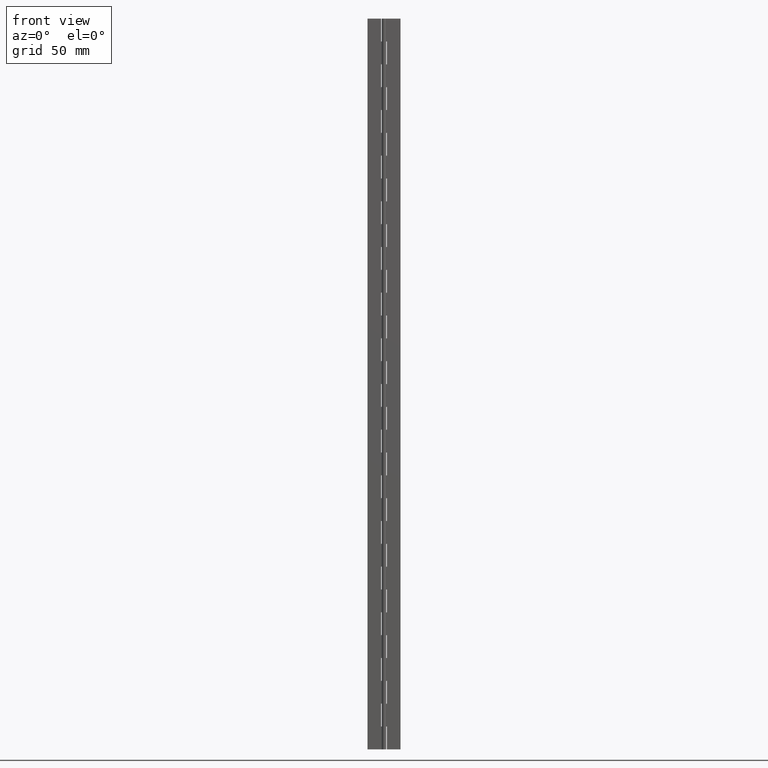
[diagram: clean part render]
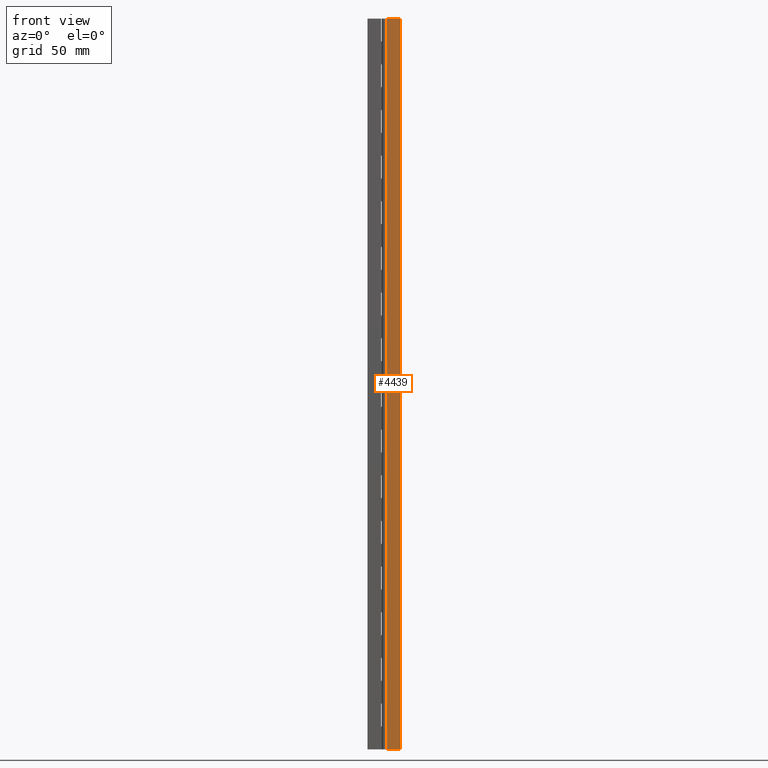
[diagram: same view with one face highlighted and labeled with its STEP entity id]
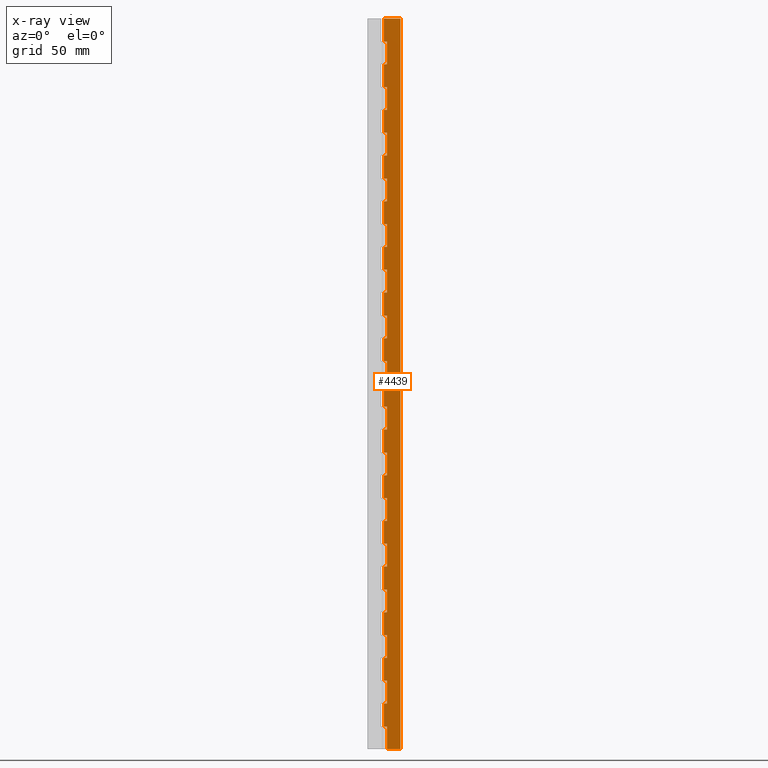
[diagram: x-ray of the same camera — body ghosted, the highlighted face saturated]
A machine part, front view. The second image highlights one B-rep face of the part: STEP entity #4439.
The next image is the same camera in x-ray: the body ghosted, the highlighted face saturated — about 0% of this face is hidden behind the body in this view.
In plain terms, the highlighted face is a freeform B-spline surface patch.
Its self-contained STEP definition (entity closure, byte-faithful):
#79=CARTESIAN_POINT('',(1.599998000000000,0.750000000000028,387.500000000000000));
#80=VERTEX_POINT('',#79);
#86=CARTESIAN_POINT('',(-1.377682E-016,0.750000000000000,387.500000000000000));
#87=VERTEX_POINT('',#86);
#88=CARTESIAN_POINT('',(1.599998000000000,0.750000000000028,387.500000000000000));
#89=CARTESIAN_POINT('',(-1.377682E-016,0.750000000000000,387.500000000000000));
#90=QUASI_UNIFORM_CURVE('',1,(#88,#89),.UNSPECIFIED.,.F.,.U.);
#91=EDGE_CURVE('',#80,#87,#90,.T.);
#127=CARTESIAN_POINT('',(-1.377682E-016,0.750000000000000,375.0));
#128=VERTEX_POINT('',#127);
#129=CARTESIAN_POINT('',(1.599998000000000,0.750000000000028,375.0));
#130=VERTEX_POINT('',#129);
#131=CARTESIAN_POINT('',(-1.377682E-016,0.750000000000000,375.0));
#132=CARTESIAN_POINT('',(1.599998000000000,0.750000000000028,375.0));
#133=QUASI_UNIFORM_CURVE('',1,(#131,#132),.UNSPECIFIED.,.F.,.U.);
#134=EDGE_CURVE('',#128,#130,#133,.T.);
#205=CARTESIAN_POINT('',(1.599998000000000,0.750000000000028,375.0));
#206=CARTESIAN_POINT('',(1.599998000000000,0.750000000000028,387.500000000000000));
#207=QUASI_UNIFORM_CURVE('',1,(#205,#206),.UNSPECIFIED.,.F.,.U.);
#208=EDGE_CURVE('',#130,#80,#207,.T.);
#255=CARTESIAN_POINT('',(1.599998000000000,0.750000000000028,362.500000000000000));
#256=VERTEX_POINT('',#255);
#262=CARTESIAN_POINT('',(-1.377682E-016,0.750000000000000,362.500000000000000));
#263=VERTEX_POINT('',#262);
#264=CARTESIAN_POINT('',(1.599998000000000,0.750000000000028,362.500000000000000));
#265=CARTESIAN_POINT('',(-1.377682E-016,0.750000000000000,362.500000000000000));
#266=QUASI_UNIFORM_CURVE('',1,(#264,#265),.UNSPECIFIED.,.F.,.U.);
#267=EDGE_CURVE('',#256,#263,#266,.T.);
#303=CARTESIAN_POINT('',(-1.377682E-016,0.750000000000000,350.0));
#304=VERTEX_POINT('',#303);
#305=CARTESIAN_POINT('',(1.599998000000000,0.750000000000028,350.0));
#306=VERTEX_POINT('',#305);
#307=CARTESIAN_POINT('',(-1.377682E-016,0.750000000000000,350.0));
#308=CARTESIAN_POINT('',(1.599998000000000,0.750000000000028,350.0));
#309=QUASI_UNIFORM_CURVE('',1,(#307,#308),.UNSPECIFIED.,.F.,.U.);
#310=EDGE_CURVE('',#304,#306,#309,.T.);
#381=CARTESIAN_POINT('',(1.599998000000000,0.750000000000028,350.0));
#382=CARTESIAN_POINT('',(1.599998000000000,0.750000000000028,362.500000000000000));
#383=QUASI_UNIFORM_CURVE('',1,(#381,#382),.UNSPECIFIED.,.F.,.U.);
#384=EDGE_CURVE('',#306,#256,#383,.T.);
#431=CARTESIAN_POINT('',(1.599998000000000,0.750000000000028,337.500000000000000));
#432=VERTEX_POINT('',#431);
#438=CARTESIAN_POINT('',(-1.377682E-016,0.750000000000000,337.500000000000000));
#439=VERTEX_POINT('',#438);
#440=CARTESIAN_POINT('',(1.599998000000000,0.750000000000028,337.500000000000000));
#441=CARTESIAN_POINT('',(-1.377682E-016,0.750000000000000,337.500000000000000));
#442=QUASI_UNIFORM_CURVE('',1,(#440,#441),.UNSPECIFIED.,.F.,.U.);
#443=EDGE_CURVE('',#432,#439,#442,.T.);
#479=CARTESIAN_POINT('',(-1.377682E-016,0.750000000000000,325.0));
#480=VERTEX_POINT('',#479);
#481=CARTESIAN_POINT('',(1.599998000000000,0.750000000000028,325.0));
#482=VERTEX_POINT('',#481);
#483=CARTESIAN_POINT('',(-1.377682E-016,0.750000000000000,325.0));
#484=CARTESIAN_POINT('',(1.599998000000000,0.750000000000028,325.0));
#485=QUASI_UNIFORM_CURVE('',1,(#483,#484),.UNSPECIFIED.,.F.,.U.);
#486=EDGE_CURVE('',#480,#482,#485,.T.);
#557=CARTESIAN_POINT('',(1.599998000000000,0.750000000000028,325.0));
#558=CARTESIAN_POINT('',(1.599998000000000,0.750000000000028,337.500000000000000));
#559=QUASI_UNIFORM_CURVE('',1,(#557,#558),.UNSPECIFIED.,.F.,.U.);
#560=EDGE_CURVE('',#482,#432,#559,.T.);
#607=CARTESIAN_POINT('',(1.599998000000000,0.750000000000028,312.500000000000000));
#608=VERTEX_POINT('',#607);
#614=CARTESIAN_POINT('',(-1.377682E-016,0.750000000000000,312.500000000000000));
#615=VERTEX_POINT('',#614);
#616=CARTESIAN_POINT('',(1.599998000000000,0.750000000000028,312.500000000000000));
#617=CARTESIAN_POINT('',(-1.377682E-016,0.750000000000000,312.500000000000000));
#618=QUASI_UNIFORM_CURVE('',1,(#616,#617),.UNSPECIFIED.,.F.,.U.);
#619=EDGE_CURVE('',#608,#615,#618,.T.);
#655=CARTESIAN_POINT('',(-1.377682E-016,0.750000000000000,300.0));
#656=VERTEX_POINT('',#655);
#657=CARTESIAN_POINT('',(1.599998000000000,0.750000000000028,300.0));
#658=VERTEX_POINT('',#657);
#659=CARTESIAN_POINT('',(-1.377682E-016,0.750000000000000,300.0));
#660=CARTESIAN_POINT('',(1.599998000000000,0.750000000000028,300.0));
#661=QUASI_UNIFORM_CURVE('',1,(#659,#660),.UNSPECIFIED.,.F.,.U.);
#662=EDGE_CURVE('',#656,#658,#661,.T.);
#733=CARTESIAN_POINT('',(1.599998000000000,0.750000000000028,300.0));
#734=CARTESIAN_POINT('',(1.599998000000000,0.750000000000028,312.500000000000000));
#735=QUASI_UNIFORM_CURVE('',1,(#733,#734),.UNSPECIFIED.,.F.,.U.);
#736=EDGE_CURVE('',#658,#608,#735,.T.);
#783=CARTESIAN_POINT('',(1.599998000000000,0.750000000000028,287.500000000000000));
#784=VERTEX_POINT('',#783);
#790=CARTESIAN_POINT('',(-1.377682E-016,0.750000000000000,287.500000000000000));
#791=VERTEX_POINT('',#790);
#792=CARTESIAN_POINT('',(1.599998000000000,0.750000000000028,287.500000000000000));
#793=CARTESIAN_POINT('',(-1.377682E-016,0.750000000000000,287.500000000000000));
#794=QUASI_UNIFORM_CURVE('',1,(#792,#793),.UNSPECIFIED.,.F.,.U.);
#795=EDGE_CURVE('',#784,#791,#794,.T.);
#831=CARTESIAN_POINT('',(-1.377682E-016,0.750000000000000,275.0));
#832=VERTEX_POINT('',#831);
#833=CARTESIAN_POINT('',(1.599998000000000,0.750000000000028,275.0));
#834=VERTEX_POINT('',#833);
#835=CARTESIAN_POINT('',(-1.377682E-016,0.750000000000000,275.0));
#836=CARTESIAN_POINT('',(1.599998000000000,0.750000000000028,275.0));
#837=QUASI_UNIFORM_CURVE('',1,(#835,#836),.UNSPECIFIED.,.F.,.U.);
#838=EDGE_CURVE('',#832,#834,#837,.T.);
#909=CARTESIAN_POINT('',(1.599998000000000,0.750000000000028,275.0));
#910=CARTESIAN_POINT('',(1.599998000000000,0.750000000000028,287.500000000000000));
#911=QUASI_UNIFORM_CURVE('',1,(#909,#910),.UNSPECIFIED.,.F.,.U.);
#912=EDGE_CURVE('',#834,#784,#911,.T.);
#959=CARTESIAN_POINT('',(1.599998000000000,0.750000000000028,262.500000000000000));
#960=VERTEX_POINT('',#959);
#966=CARTESIAN_POINT('',(-1.377682E-016,0.750000000000000,262.500000000000000));
#967=VERTEX_POINT('',#966);
#968=CARTESIAN_POINT('',(1.599998000000000,0.750000000000028,262.500000000000000));
#969=CARTESIAN_POINT('',(-1.377682E-016,0.750000000000000,262.500000000000000));
#970=QUASI_UNIFORM_CURVE('',1,(#968,#969),.UNSPECIFIED.,.F.,.U.);
#971=EDGE_CURVE('',#960,#967,#970,.T.);
#1007=CARTESIAN_POINT('',(-1.377682E-016,0.750000000000000,250.0));
#1008=VERTEX_POINT('',#1007);
#1009=CARTESIAN_POINT('',(1.599998000000000,0.750000000000028,250.0));
#1010=VERTEX_POINT('',#1009);
#1011=CARTESIAN_POINT('',(-1.377682E-016,0.750000000000000,250.0));
#1012=CARTESIAN_POINT('',(1.599998000000000,0.750000000000028,250.0));
#1013=QUASI_UNIFORM_CURVE('',1,(#1011,#1012),.UNSPECIFIED.,.F.,.U.);
#1014=EDGE_CURVE('',#1008,#1010,#1013,.T.);
#1085=CARTESIAN_POINT('',(1.599998000000000,0.750000000000028,250.0));
#1086=CARTESIAN_POINT('',(1.599998000000000,0.750000000000028,262.500000000000000));
#1087=QUASI_UNIFORM_CURVE('',1,(#1085,#1086),.UNSPECIFIED.,.F.,.U.);
#1088=EDGE_CURVE('',#1010,#960,#1087,.T.);
#1135=CARTESIAN_POINT('',(1.599998000000000,0.750000000000028,237.500000000000000));
#1136=VERTEX_POINT('',#1135);
#1142=CARTESIAN_POINT('',(-1.377682E-016,0.750000000000000,237.500000000000000));
#1143=VERTEX_POINT('',#1142);
#1144=CARTESIAN_POINT('',(1.599998000000000,0.750000000000028,237.500000000000000));
#1145=CARTESIAN_POINT('',(-1.377682E-016,0.750000000000000,237.500000000000000));
#1146=QUASI_UNIFORM_CURVE('',1,(#1144,#1145),.UNSPECIFIED.,.F.,.U.);
#1147=EDGE_CURVE('',#1136,#1143,#1146,.T.);
#1183=CARTESIAN_POINT('',(-1.377682E-016,0.750000000000000,225.0));
#1184=VERTEX_POINT('',#1183);
#1185=CARTESIAN_POINT('',(1.599998000000000,0.750000000000028,225.0));
#1186=VERTEX_POINT('',#1185);
#1187=CARTESIAN_POINT('',(-1.377682E-016,0.750000000000000,225.0));
#1188=CARTESIAN_POINT('',(1.599998000000000,0.750000000000028,225.0));
#1189=QUASI_UNIFORM_CURVE('',1,(#1187,#1188),.UNSPECIFIED.,.F.,.U.);
#1190=EDGE_CURVE('',#1184,#1186,#1189,.T.);
#1261=CARTESIAN_POINT('',(1.599998000000000,0.750000000000028,225.0));
#1262=CARTESIAN_POINT('',(1.599998000000000,0.750000000000028,237.500000000000000));
#1263=QUASI_UNIFORM_CURVE('',1,(#1261,#1262),.UNSPECIFIED.,.F.,.U.);
#1264=EDGE_CURVE('',#1186,#1136,#1263,.T.);
#1311=CARTESIAN_POINT('',(1.599998000000000,0.750000000000028,212.500000000000000));
#1312=VERTEX_POINT('',#1311);
#1318=CARTESIAN_POINT('',(-1.377682E-016,0.750000000000000,212.500000000000000));
#1319=VERTEX_POINT('',#1318);
#1320=CARTESIAN_POINT('',(1.599998000000000,0.750000000000028,212.500000000000000));
#1321=CARTESIAN_POINT('',(-1.377682E-016,0.750000000000000,212.500000000000000));
#1322=QUASI_UNIFORM_CURVE('',1,(#1320,#1321),.UNSPECIFIED.,.F.,.U.);
#1323=EDGE_CURVE('',#1312,#1319,#1322,.T.);
#1359=CARTESIAN_POINT('',(-1.377682E-016,0.750000000000000,200.0));
#1360=VERTEX_POINT('',#1359);
#1361=CARTESIAN_POINT('',(1.599998000000000,0.750000000000028,200.0));
#1362=VERTEX_POINT('',#1361);
#1363=CARTESIAN_POINT('',(-1.377682E-016,0.750000000000000,200.0));
#1364=CARTESIAN_POINT('',(1.599998000000000,0.750000000000028,200.0));
#1365=QUASI_UNIFORM_CURVE('',1,(#1363,#1364),.UNSPECIFIED.,.F.,.U.);
#1366=EDGE_CURVE('',#1360,#1362,#1365,.T.);
#1437=CARTESIAN_POINT('',(1.599998000000000,0.750000000000028,200.0));
#1438=CARTESIAN_POINT('',(1.599998000000000,0.750000000000028,212.500000000000000));
#1439=QUASI_UNIFORM_CURVE('',1,(#1437,#1438),.UNSPECIFIED.,.F.,.U.);
#1440=EDGE_CURVE('',#1362,#1312,#1439,.T.);
#1487=CARTESIAN_POINT('',(1.599998000000000,0.750000000000028,187.500000000000000));
#1488=VERTEX_POINT('',#1487);
#1494=CARTESIAN_POINT('',(-1.377682E-016,0.750000000000000,187.500000000000000));
#1495=VERTEX_POINT('',#1494);
#1496=CARTESIAN_POINT('',(1.599998000000000,0.750000000000028,187.500000000000000));
#1497=CARTESIAN_POINT('',(-1.377682E-016,0.750000000000000,187.500000000000000));
#1498=QUASI_UNIFORM_CURVE('',1,(#1496,#1497),.UNSPECIFIED.,.F.,.U.);
#1499=EDGE_CURVE('',#1488,#1495,#1498,.T.);
#1535=CARTESIAN_POINT('',(-1.377682E-016,0.750000000000000,175.0));
#1536=VERTEX_POINT('',#1535);
#1537=CARTESIAN_POINT('',(1.599998000000000,0.750000000000028,175.0));
#1538=VERTEX_POINT('',#1537);
#1539=CARTESIAN_POINT('',(-1.377682E-016,0.750000000000000,175.0));
#1540=CARTESIAN_POINT('',(1.599998000000000,0.750000000000028,175.0));
#1541=QUASI_UNIFORM_CURVE('',1,(#1539,#1540),.UNSPECIFIED.,.F.,.U.);
#1542=EDGE_CURVE('',#1536,#1538,#1541,.T.);
#1613=CARTESIAN_POINT('',(1.599998000000000,0.750000000000028,175.0));
#1614=CARTESIAN_POINT('',(1.599998000000000,0.750000000000028,187.500000000000000));
#1615=QUASI_UNIFORM_CURVE('',1,(#1613,#1614),.UNSPECIFIED.,.F.,.U.);
#1616=EDGE_CURVE('',#1538,#1488,#1615,.T.);
#1663=CARTESIAN_POINT('',(1.599998000000000,0.750000000000028,162.500000000000000));
#1664=VERTEX_POINT('',#1663);
#1670=CARTESIAN_POINT('',(-1.377682E-016,0.750000000000000,162.500000000000000));
#1671=VERTEX_POINT('',#1670);
#1672=CARTESIAN_POINT('',(1.599998000000000,0.750000000000028,162.500000000000000));
#1673=CARTESIAN_POINT('',(-1.377682E-016,0.750000000000000,162.500000000000000));
#1674=QUASI_UNIFORM_CURVE('',1,(#1672,#1673),.UNSPECIFIED.,.F.,.U.);
#1675=EDGE_CURVE('',#1664,#1671,#1674,.T.);
#1711=CARTESIAN_POINT('',(-1.377682E-016,0.750000000000000,150.0));
#1712=VERTEX_POINT('',#1711);
#1713=CARTESIAN_POINT('',(1.599998000000000,0.750000000000028,150.0));
#1714=VERTEX_POINT('',#1713);
#1715=CARTESIAN_POINT('',(-1.377682E-016,0.750000000000000,150.0));
#1716=CARTESIAN_POINT('',(1.599998000000000,0.750000000000028,150.0));
#1717=QUASI_UNIFORM_CURVE('',1,(#1715,#1716),.UNSPECIFIED.,.F.,.U.);
#1718=EDGE_CURVE('',#1712,#1714,#1717,.T.);
#1789=CARTESIAN_POINT('',(1.599998000000000,0.750000000000028,150.0));
#1790=CARTESIAN_POINT('',(1.599998000000000,0.750000000000028,162.500000000000000));
#1791=QUASI_UNIFORM_CURVE('',1,(#1789,#1790),.UNSPECIFIED.,.F.,.U.);
#1792=EDGE_CURVE('',#1714,#1664,#1791,.T.);
#1839=CARTESIAN_POINT('',(1.599998000000000,0.750000000000028,137.500000000000000));
#1840=VERTEX_POINT('',#1839);
#1846=CARTESIAN_POINT('',(-1.377682E-016,0.750000000000000,137.500000000000000));
#1847=VERTEX_POINT('',#1846);
#1848=CARTESIAN_POINT('',(1.599998000000000,0.750000000000028,137.500000000000000));
#1849=CARTESIAN_POINT('',(-1.377682E-016,0.750000000000000,137.500000000000000));
#1850=QUASI_UNIFORM_CURVE('',1,(#1848,#1849),.UNSPECIFIED.,.F.,.U.);
#1851=EDGE_CURVE('',#1840,#1847,#1850,.T.);
#1887=CARTESIAN_POINT('',(-1.377682E-016,0.750000000000000,125.0));
#1888=VERTEX_POINT('',#1887);
#1889=CARTESIAN_POINT('',(1.599998000000000,0.750000000000028,125.0));
#1890=VERTEX_POINT('',#1889);
#1891=CARTESIAN_POINT('',(-1.377682E-016,0.750000000000000,125.0));
#1892=CARTESIAN_POINT('',(1.599998000000000,0.750000000000028,125.0));
#1893=QUASI_UNIFORM_CURVE('',1,(#1891,#1892),.UNSPECIFIED.,.F.,.U.);
#1894=EDGE_CURVE('',#1888,#1890,#1893,.T.);
#1965=CARTESIAN_POINT('',(1.599998000000000,0.750000000000028,125.0));
#1966=CARTESIAN_POINT('',(1.599998000000000,0.750000000000028,137.500000000000000));
#1967=QUASI_UNIFORM_CURVE('',1,(#1965,#1966),.UNSPECIFIED.,.F.,.U.);
#1968=EDGE_CURVE('',#1890,#1840,#1967,.T.);
#2015=CARTESIAN_POINT('',(1.599998000000000,0.750000000000028,112.500000000000000));
#2016=VERTEX_POINT('',#2015);
#2022=CARTESIAN_POINT('',(-1.377682E-016,0.750000000000000,112.500000000000000));
#2023=VERTEX_POINT('',#2022);
#2024=CARTESIAN_POINT('',(1.599998000000000,0.750000000000028,112.500000000000000));
#2025=CARTESIAN_POINT('',(-1.377682E-016,0.750000000000000,112.500000000000000));
#2026=QUASI_UNIFORM_CURVE('',1,(#2024,#2025),.UNSPECIFIED.,.F.,.U.);
#2027=EDGE_CURVE('',#2016,#2023,#2026,.T.);
#2063=CARTESIAN_POINT('',(-1.377682E-016,0.750000000000000,100.0));
#2064=VERTEX_POINT('',#2063);
#2065=CARTESIAN_POINT('',(1.599998000000000,0.750000000000028,100.0));
#2066=VERTEX_POINT('',#2065);
#2067=CARTESIAN_POINT('',(-1.377682E-016,0.750000000000000,100.0));
#2068=CARTESIAN_POINT('',(1.599998000000000,0.750000000000028,100.0));
#2069=QUASI_UNIFORM_CURVE('',1,(#2067,#2068),.UNSPECIFIED.,.F.,.U.);
#2070=EDGE_CURVE('',#2064,#2066,#2069,.T.);
#2141=CARTESIAN_POINT('',(1.599998000000000,0.750000000000028,100.0));
#2142=CARTESIAN_POINT('',(1.599998000000000,0.750000000000028,112.500000000000000));
#2143=QUASI_UNIFORM_CURVE('',1,(#2141,#2142),.UNSPECIFIED.,.F.,.U.);
#2144=EDGE_CURVE('',#2066,#2016,#2143,.T.);
#2191=CARTESIAN_POINT('',(1.599998000000000,0.750000000000028,87.500000000000000));
#2192=VERTEX_POINT('',#2191);
#2198=CARTESIAN_POINT('',(-1.377682E-016,0.750000000000000,87.500000000000000));
#2199=VERTEX_POINT('',#2198);
#2200=CARTESIAN_POINT('',(1.599998000000000,0.750000000000028,87.500000000000000));
#2201=CARTESIAN_POINT('',(-1.377682E-016,0.750000000000000,87.500000000000000));
#2202=QUASI_UNIFORM_CURVE('',1,(#2200,#2201),.UNSPECIFIED.,.F.,.U.);
#2203=EDGE_CURVE('',#2192,#2199,#2202,.T.);
#2239=CARTESIAN_POINT('',(-1.377682E-016,0.750000000000000,75.0));
#2240=VERTEX_POINT('',#2239);
#2241=CARTESIAN_POINT('',(1.599998000000000,0.750000000000028,75.0));
#2242=VERTEX_POINT('',#2241);
#2243=CARTESIAN_POINT('',(-1.377682E-016,0.750000000000000,75.0));
#2244=CARTESIAN_POINT('',(1.599998000000000,0.750000000000028,75.0));
#2245=QUASI_UNIFORM_CURVE('',1,(#2243,#2244),.UNSPECIFIED.,.F.,.U.);
#2246=EDGE_CURVE('',#2240,#2242,#2245,.T.);
#2317=CARTESIAN_POINT('',(1.599998000000000,0.750000000000028,75.0));
#2318=CARTESIAN_POINT('',(1.599998000000000,0.750000000000028,87.500000000000000));
#2319=QUASI_UNIFORM_CURVE('',1,(#2317,#2318),.UNSPECIFIED.,.F.,.U.);
#2320=EDGE_CURVE('',#2242,#2192,#2319,.T.);
#2367=CARTESIAN_POINT('',(1.599998000000000,0.750000000000028,62.500000000000000));
#2368=VERTEX_POINT('',#2367);
#2374=CARTESIAN_POINT('',(-1.377682E-016,0.750000000000000,62.500000000000000));
#2375=VERTEX_POINT('',#2374);
#2376=CARTESIAN_POINT('',(1.599998000000000,0.750000000000028,62.500000000000000));
#2377=CARTESIAN_POINT('',(-1.377682E-016,0.750000000000000,62.500000000000000));
#2378=QUASI_UNIFORM_CURVE('',1,(#2376,#2377),.UNSPECIFIED.,.F.,.U.);
#2379=EDGE_CURVE('',#2368,#2375,#2378,.T.);
#2415=CARTESIAN_POINT('',(-1.377682E-016,0.750000000000000,50.0));
#2416=VERTEX_POINT('',#2415);
#2417=CARTESIAN_POINT('',(1.599998000000000,0.750000000000028,50.0));
#2418=VERTEX_POINT('',#2417);
#2419=CARTESIAN_POINT('',(-1.377682E-016,0.750000000000000,50.0));
#2420=CARTESIAN_POINT('',(1.599998000000000,0.750000000000028,50.0));
#2421=QUASI_UNIFORM_CURVE('',1,(#2419,#2420),.UNSPECIFIED.,.F.,.U.);
#2422=EDGE_CURVE('',#2416,#2418,#2421,.T.);
#2493=CARTESIAN_POINT('',(1.599998000000000,0.750000000000028,50.0));
#2494=CARTESIAN_POINT('',(1.599998000000000,0.750000000000028,62.500000000000000));
#2495=QUASI_UNIFORM_CURVE('',1,(#2493,#2494),.UNSPECIFIED.,.F.,.U.);
#2496=EDGE_CURVE('',#2418,#2368,#2495,.T.);
#2543=CARTESIAN_POINT('',(1.599998000000000,0.750000000000028,37.500000000000000));
#2544=VERTEX_POINT('',#2543);
#2550=CARTESIAN_POINT('',(-1.377682E-016,0.750000000000000,37.500000000000000));
#2551=VERTEX_POINT('',#2550);
#2552=CARTESIAN_POINT('',(1.599998000000000,0.750000000000028,37.500000000000000));
#2553=CARTESIAN_POINT('',(-1.377682E-016,0.750000000000000,37.500000000000000));
#2554=QUASI_UNIFORM_CURVE('',1,(#2552,#2553),.UNSPECIFIED.,.F.,.U.);
#2555=EDGE_CURVE('',#2544,#2551,#2554,.T.);
#2591=CARTESIAN_POINT('',(-1.377682E-016,0.750000000000000,25.0));
#2592=VERTEX_POINT('',#2591);
#2593=CARTESIAN_POINT('',(1.599998000000000,0.750000000000028,25.0));
#2594=VERTEX_POINT('',#2593);
#2595=CARTESIAN_POINT('',(-1.377682E-016,0.750000000000000,25.0));
#2596=CARTESIAN_POINT('',(1.599998000000000,0.750000000000028,25.0));
#2597=QUASI_UNIFORM_CURVE('',1,(#2595,#2596),.UNSPECIFIED.,.F.,.U.);
#2598=EDGE_CURVE('',#2592,#2594,#2597,.T.);
#2669=CARTESIAN_POINT('',(1.599998000000000,0.750000000000028,25.0));
#2670=CARTESIAN_POINT('',(1.599998000000000,0.750000000000028,37.500000000000000));
#2671=QUASI_UNIFORM_CURVE('',1,(#2669,#2670),.UNSPECIFIED.,.F.,.U.);
#2672=EDGE_CURVE('',#2594,#2544,#2671,.T.);
#2689=CARTESIAN_POINT('',(1.599998000000000,0.750000000000028,0.0));
#2690=VERTEX_POINT('',#2689);
#2691=CARTESIAN_POINT('',(1.599998000000000,0.750000000000028,12.500000000000000));
#2692=VERTEX_POINT('',#2691);
#2693=CARTESIAN_POINT('',(1.599998000000000,0.750000000000028,0.0));
#2694=CARTESIAN_POINT('',(1.599998000000000,0.750000000000028,12.500000000000000));
#2695=QUASI_UNIFORM_CURVE('',1,(#2693,#2694),.UNSPECIFIED.,.F.,.U.);
#2696=EDGE_CURVE('',#2690,#2692,#2695,.T.);
#2754=CARTESIAN_POINT('',(-1.377682E-016,0.750000000000000,12.500000000000000));
#2755=VERTEX_POINT('',#2754);
#2756=CARTESIAN_POINT('',(1.599998000000000,0.750000000000028,12.500000000000000));
#2757=CARTESIAN_POINT('',(-1.377682E-016,0.750000000000000,12.500000000000000));
#2758=QUASI_UNIFORM_CURVE('',1,(#2756,#2757),.UNSPECIFIED.,.F.,.U.);
#2759=EDGE_CURVE('',#2692,#2755,#2758,.T.);
#2795=CARTESIAN_POINT('',(-1.377682E-016,0.750000000000000,400.0));
#2796=VERTEX_POINT('',#2795);
#2797=CARTESIAN_POINT('',(9.0,0.750000000000000,400.0));
#2798=VERTEX_POINT('',#2797);
#2799=CARTESIAN_POINT('',(-1.377682E-016,0.750000000000000,400.0));
#2800=CARTESIAN_POINT('',(9.0,0.750000000000000,400.0));
#2801=QUASI_UNIFORM_CURVE('',1,(#2799,#2800),.UNSPECIFIED.,.F.,.U.);
#2802=EDGE_CURVE('',#2796,#2798,#2801,.T.);
#2873=CARTESIAN_POINT('',(9.0,0.750000000000000,0.0));
#2874=VERTEX_POINT('',#2873);
#2888=CARTESIAN_POINT('',(9.0,0.750000000000000,400.0));
#2889=CARTESIAN_POINT('',(9.0,0.750000000000000,0.0));
#2890=QUASI_UNIFORM_CURVE('',1,(#2888,#2889),.UNSPECIFIED.,.F.,.U.);
#2891=EDGE_CURVE('',#2798,#2874,#2890,.T.);
#2908=CARTESIAN_POINT('',(1.599998000000000,0.750000000000028,0.0));
#2909=CARTESIAN_POINT('',(9.0,0.750000000000000,0.0));
#2910=QUASI_UNIFORM_CURVE('',1,(#2908,#2909),.UNSPECIFIED.,.F.,.U.);
#2911=EDGE_CURVE('',#2690,#2874,#2910,.T.);
#2938=CARTESIAN_POINT('',(-1.377682E-016,0.750000000000000,25.0));
#2939=CARTESIAN_POINT('',(-1.377682E-016,0.750000000000000,12.500000000000000));
#2940=QUASI_UNIFORM_CURVE('',1,(#2938,#2939),.UNSPECIFIED.,.F.,.U.);
#2941=EDGE_CURVE('',#2592,#2755,#2940,.T.);
#3024=CARTESIAN_POINT('',(-1.377682E-016,0.750000000000000,50.0));
#3025=CARTESIAN_POINT('',(-1.377682E-016,0.750000000000000,37.500000000000000));
#3026=QUASI_UNIFORM_CURVE('',1,(#3024,#3025),.UNSPECIFIED.,.F.,.U.);
#3027=EDGE_CURVE('',#2416,#2551,#3026,.T.);
#3110=CARTESIAN_POINT('',(-1.377682E-016,0.750000000000000,75.0));
#3111=CARTESIAN_POINT('',(-1.377682E-016,0.750000000000000,62.500000000000000));
#3112=QUASI_UNIFORM_CURVE('',1,(#3110,#3111),.UNSPECIFIED.,.F.,.U.);
#3113=EDGE_CURVE('',#2240,#2375,#3112,.T.);
#3196=CARTESIAN_POINT('',(-1.377682E-016,0.750000000000000,100.0));
#3197=CARTESIAN_POINT('',(-1.377682E-016,0.750000000000000,87.500000000000000));
#3198=QUASI_UNIFORM_CURVE('',1,(#3196,#3197),.UNSPECIFIED.,.F.,.U.);
#3199=EDGE_CURVE('',#2064,#2199,#3198,.T.);
#3282=CARTESIAN_POINT('',(-1.377682E-016,0.750000000000000,125.0));
#3283=CARTESIAN_POINT('',(-1.377682E-016,0.750000000000000,112.500000000000000));
#3284=QUASI_UNIFORM_CURVE('',1,(#3282,#3283),.UNSPECIFIED.,.F.,.U.);
#3285=EDGE_CURVE('',#1888,#2023,#3284,.T.);
#3368=CARTESIAN_POINT('',(-1.377682E-016,0.750000000000000,150.0));
#3369=CARTESIAN_POINT('',(-1.377682E-016,0.750000000000000,137.500000000000000));
#3370=QUASI_UNIFORM_CURVE('',1,(#3368,#3369),.UNSPECIFIED.,.F.,.U.);
#3371=EDGE_CURVE('',#1712,#1847,#3370,.T.);
#3454=CARTESIAN_POINT('',(-1.377682E-016,0.750000000000000,175.0));
#3455=CARTESIAN_POINT('',(-1.377682E-016,0.750000000000000,162.500000000000000));
#3456=QUASI_UNIFORM_CURVE('',1,(#3454,#3455),.UNSPECIFIED.,.F.,.U.);
#3457=EDGE_CURVE('',#1536,#1671,#3456,.T.);
#3540=CARTESIAN_POINT('',(-1.377682E-016,0.750000000000000,200.0));
#3541=CARTESIAN_POINT('',(-1.377682E-016,0.750000000000000,187.500000000000000));
#3542=QUASI_UNIFORM_CURVE('',1,(#3540,#3541),.UNSPECIFIED.,.F.,.U.);
#3543=EDGE_CURVE('',#1360,#1495,#3542,.T.);
#3626=CARTESIAN_POINT('',(-1.377682E-016,0.750000000000000,225.0));
#3627=CARTESIAN_POINT('',(-1.377682E-016,0.750000000000000,212.500000000000000));
#3628=QUASI_UNIFORM_CURVE('',1,(#3626,#3627),.UNSPECIFIED.,.F.,.U.);
#3629=EDGE_CURVE('',#1184,#1319,#3628,.T.);
#3712=CARTESIAN_POINT('',(-1.377682E-016,0.750000000000000,250.0));
#3713=CARTESIAN_POINT('',(-1.377682E-016,0.750000000000000,237.500000000000000));
#3714=QUASI_UNIFORM_CURVE('',1,(#3712,#3713),.UNSPECIFIED.,.F.,.U.);
#3715=EDGE_CURVE('',#1008,#1143,#3714,.T.);
#3798=CARTESIAN_POINT('',(-1.377682E-016,0.750000000000000,275.0));
#3799=CARTESIAN_POINT('',(-1.377682E-016,0.750000000000000,262.500000000000000));
#3800=QUASI_UNIFORM_CURVE('',1,(#3798,#3799),.UNSPECIFIED.,.F.,.U.);
#3801=EDGE_CURVE('',#832,#967,#3800,.T.);
#3884=CARTESIAN_POINT('',(-1.377682E-016,0.750000000000000,300.0));
#3885=CARTESIAN_POINT('',(-1.377682E-016,0.750000000000000,287.500000000000000));
#3886=QUASI_UNIFORM_CURVE('',1,(#3884,#3885),.UNSPECIFIED.,.F.,.U.);
#3887=EDGE_CURVE('',#656,#791,#3886,.T.);
#3970=CARTESIAN_POINT('',(-1.377682E-016,0.750000000000000,325.0));
#3971=CARTESIAN_POINT('',(-1.377682E-016,0.750000000000000,312.500000000000000));
#3972=QUASI_UNIFORM_CURVE('',1,(#3970,#3971),.UNSPECIFIED.,.F.,.U.);
#3973=EDGE_CURVE('',#480,#615,#3972,.T.);
#4056=CARTESIAN_POINT('',(-1.377682E-016,0.750000000000000,350.0));
#4057=CARTESIAN_POINT('',(-1.377682E-016,0.750000000000000,337.500000000000000));
#4058=QUASI_UNIFORM_CURVE('',1,(#4056,#4057),.UNSPECIFIED.,.F.,.U.);
#4059=EDGE_CURVE('',#304,#439,#4058,.T.);
#4148=CARTESIAN_POINT('',(-1.377682E-016,0.750000000000000,400.0));
#4149=CARTESIAN_POINT('',(-1.377682E-016,0.750000000000000,387.500000000000000));
#4150=QUASI_UNIFORM_CURVE('',1,(#4148,#4149),.UNSPECIFIED.,.F.,.U.);
#4151=EDGE_CURVE('',#2796,#87,#4150,.T.);
#4179=CARTESIAN_POINT('',(-1.377682E-016,0.750000000000000,375.0));
#4180=CARTESIAN_POINT('',(-1.377682E-016,0.750000000000000,362.500000000000000));
#4181=QUASI_UNIFORM_CURVE('',1,(#4179,#4180),.UNSPECIFIED.,.F.,.U.);
#4182=EDGE_CURVE('',#128,#263,#4181,.T.);
#4366=CARTESIAN_POINT('',(-0.449549982556253,0.750000000000000,-19.979999224722391));
#4367=CARTESIAN_POINT('',(-0.449549982556253,0.750000000000000,419.980009953558520));
#4368=CARTESIAN_POINT('',(9.449550223955063,0.750000000000000,-19.979999224722391));
#4369=CARTESIAN_POINT('',(9.449550223955063,0.750000000000000,419.980009953558520));
#4370=B_SPLINE_SURFACE_WITH_KNOTS('',1,1,((#4366,#4368),(#4367,#4369)),.UNSPECIFIED.,.F.,.F.,.U.,(2,2),(2,2),(0.0,439.960009178280930),(0.0,9.899100206511315),.UNSPECIFIED.);
#4371=ORIENTED_EDGE('',*,*,#134,.F.);
#4372=ORIENTED_EDGE('',*,*,#4182,.T.);
#4373=ORIENTED_EDGE('',*,*,#267,.F.);
#4374=ORIENTED_EDGE('',*,*,#384,.F.);
#4375=ORIENTED_EDGE('',*,*,#310,.F.);
#4376=ORIENTED_EDGE('',*,*,#4059,.T.);
#4377=ORIENTED_EDGE('',*,*,#443,.F.);
#4378=ORIENTED_EDGE('',*,*,#560,.F.);
#4379=ORIENTED_EDGE('',*,*,#486,.F.);
#4380=ORIENTED_EDGE('',*,*,#3973,.T.);
#4381=ORIENTED_EDGE('',*,*,#619,.F.);
#4382=ORIENTED_EDGE('',*,*,#736,.F.);
#4383=ORIENTED_EDGE('',*,*,#662,.F.);
#4384=ORIENTED_EDGE('',*,*,#3887,.T.);
#4385=ORIENTED_EDGE('',*,*,#795,.F.);
#4386=ORIENTED_EDGE('',*,*,#912,.F.);
#4387=ORIENTED_EDGE('',*,*,#838,.F.);
#4388=ORIENTED_EDGE('',*,*,#3801,.T.);
#4389=ORIENTED_EDGE('',*,*,#971,.F.);
#4390=ORIENTED_EDGE('',*,*,#1088,.F.);
#4391=ORIENTED_EDGE('',*,*,#1014,.F.);
#4392=ORIENTED_EDGE('',*,*,#3715,.T.);
#4393=ORIENTED_EDGE('',*,*,#1147,.F.);
#4394=ORIENTED_EDGE('',*,*,#1264,.F.);
#4395=ORIENTED_EDGE('',*,*,#1190,.F.);
#4396=ORIENTED_EDGE('',*,*,#3629,.T.);
#4397=ORIENTED_EDGE('',*,*,#1323,.F.);
#4398=ORIENTED_EDGE('',*,*,#1440,.F.);
#4399=ORIENTED_EDGE('',*,*,#1366,.F.);
#4400=ORIENTED_EDGE('',*,*,#3543,.T.);
#4401=ORIENTED_EDGE('',*,*,#1499,.F.);
#4402=ORIENTED_EDGE('',*,*,#1616,.F.);
#4403=ORIENTED_EDGE('',*,*,#1542,.F.);
#4404=ORIENTED_EDGE('',*,*,#3457,.T.);
#4405=ORIENTED_EDGE('',*,*,#1675,.F.);
#4406=ORIENTED_EDGE('',*,*,#1792,.F.);
#4407=ORIENTED_EDGE('',*,*,#1718,.F.);
#4408=ORIENTED_EDGE('',*,*,#3371,.T.);
#4409=ORIENTED_EDGE('',*,*,#1851,.F.);
#4410=ORIENTED_EDGE('',*,*,#1968,.F.);
#4411=ORIENTED_EDGE('',*,*,#1894,.F.);
#4412=ORIENTED_EDGE('',*,*,#3285,.T.);
#4413=ORIENTED_EDGE('',*,*,#2027,.F.);
#4414=ORIENTED_EDGE('',*,*,#2144,.F.);
#4415=ORIENTED_EDGE('',*,*,#2070,.F.);
#4416=ORIENTED_EDGE('',*,*,#3199,.T.);
#4417=ORIENTED_EDGE('',*,*,#2203,.F.);
#4418=ORIENTED_EDGE('',*,*,#2320,.F.);
#4419=ORIENTED_EDGE('',*,*,#2246,.F.);
#4420=ORIENTED_EDGE('',*,*,#3113,.T.);
#4421=ORIENTED_EDGE('',*,*,#2379,.F.);
#4422=ORIENTED_EDGE('',*,*,#2496,.F.);
#4423=ORIENTED_EDGE('',*,*,#2422,.F.);
#4424=ORIENTED_EDGE('',*,*,#3027,.T.);
#4425=ORIENTED_EDGE('',*,*,#2555,.F.);
#4426=ORIENTED_EDGE('',*,*,#2672,.F.);
#4427=ORIENTED_EDGE('',*,*,#2598,.F.);
#4428=ORIENTED_EDGE('',*,*,#2941,.T.);
#4429=ORIENTED_EDGE('',*,*,#2759,.F.);
#4430=ORIENTED_EDGE('',*,*,#2696,.F.);
#4431=ORIENTED_EDGE('',*,*,#2911,.T.);
#4432=ORIENTED_EDGE('',*,*,#2891,.F.);
#4433=ORIENTED_EDGE('',*,*,#2802,.F.);
#4434=ORIENTED_EDGE('',*,*,#4151,.T.);
#4435=ORIENTED_EDGE('',*,*,#91,.F.);
#4436=ORIENTED_EDGE('',*,*,#208,.F.);
#4437=EDGE_LOOP('',(#4371,#4372,#4373,#4374,#4375,#4376,#4377,#4378,#4379,#4380,#4381,#4382,#4383,#4384,#4385,#4386,#4387,#4388,#4389,#4390,#4391,#4392,#4393,#4394,#4395,#4396,#4397,#4398,#4399,#4400,#4401,#4402,#4403,#4404,#4405,#4406,#4407,#4408,#4409,#4410,#4411,#4412,#4413,#4414,#4415,#4416,#4417,#4418,#4419,#4420,#4421,#4422,#4423,#4424,#4425,#4426,#4427,#4428,#4429,#4430,#4431,#4432,#4433,#4434,#4435,#4436));
#4438=FACE_OUTER_BOUND('',#4437,.T.);
#4439=ADVANCED_FACE('',(#4438),#4370,.F.);